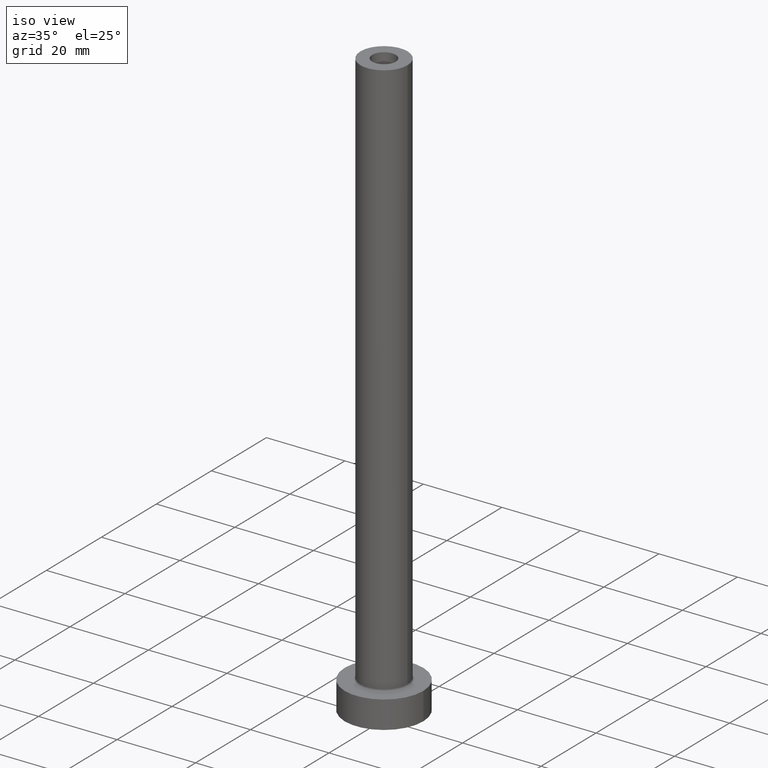
[diagram: clean part render]
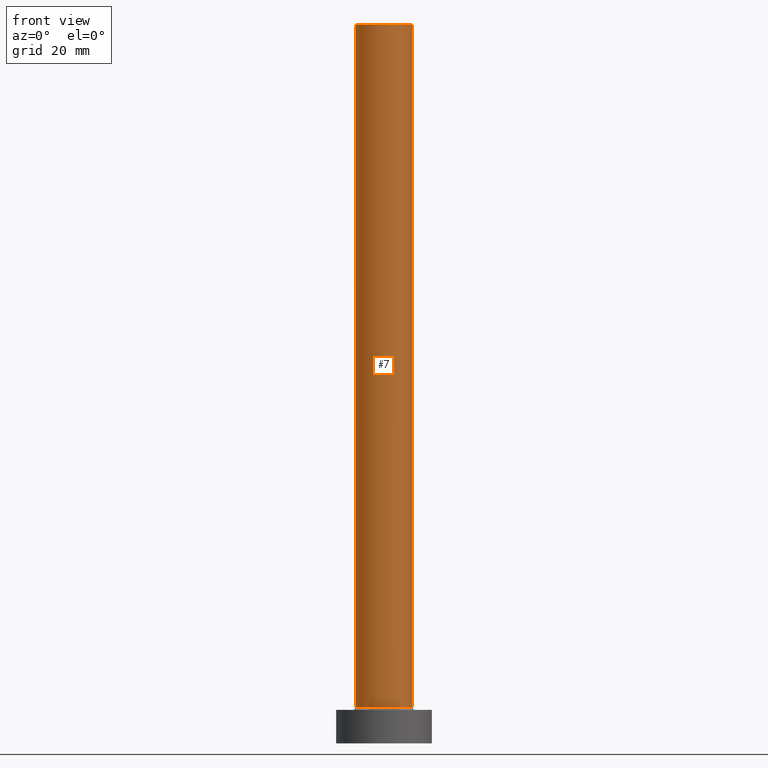
[diagram: tour spotlight — one face highlighted and labeled with its STEP entity id]
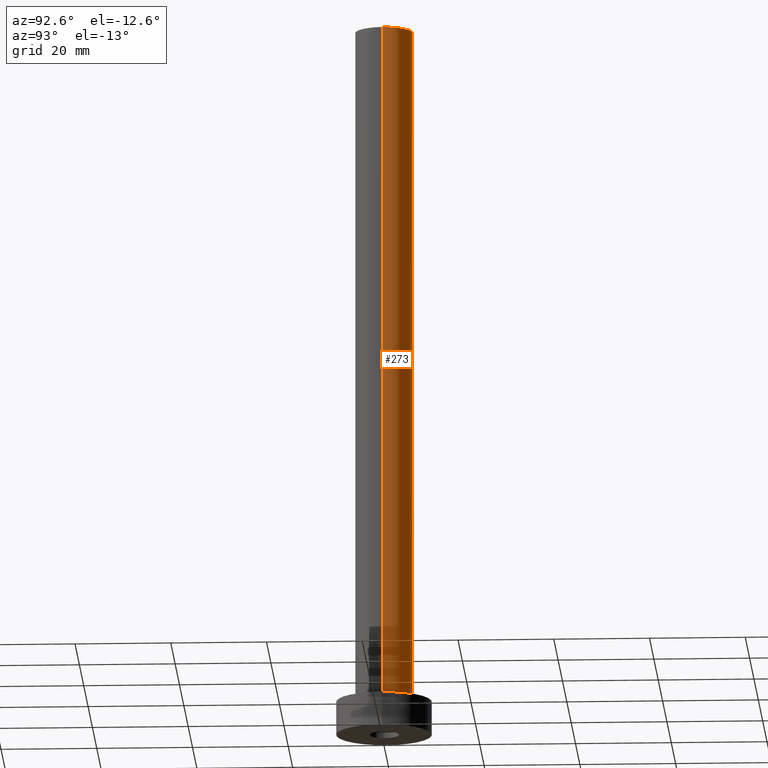
[diagram: tour spotlight — one face highlighted and labeled with its STEP entity id]
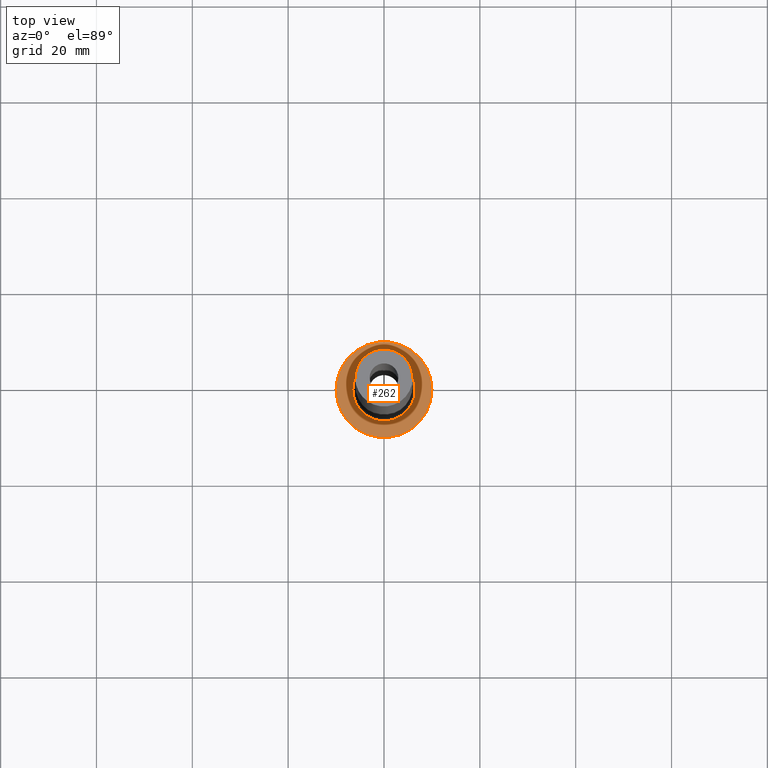
[diagram: tour spotlight — one face highlighted and labeled with its STEP entity id]
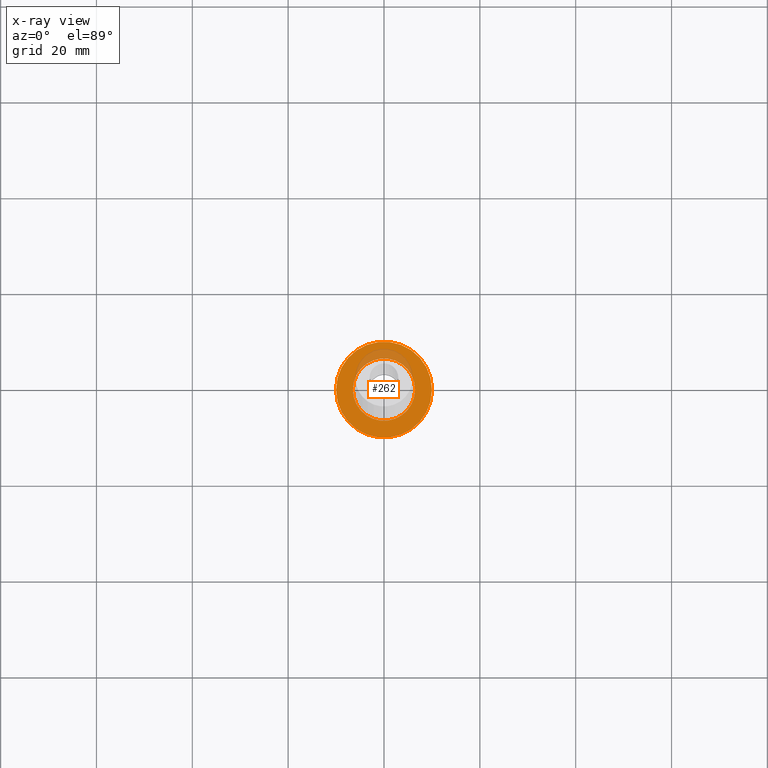
[diagram: x-ray of the same camera — body ghosted, this tour face saturated]
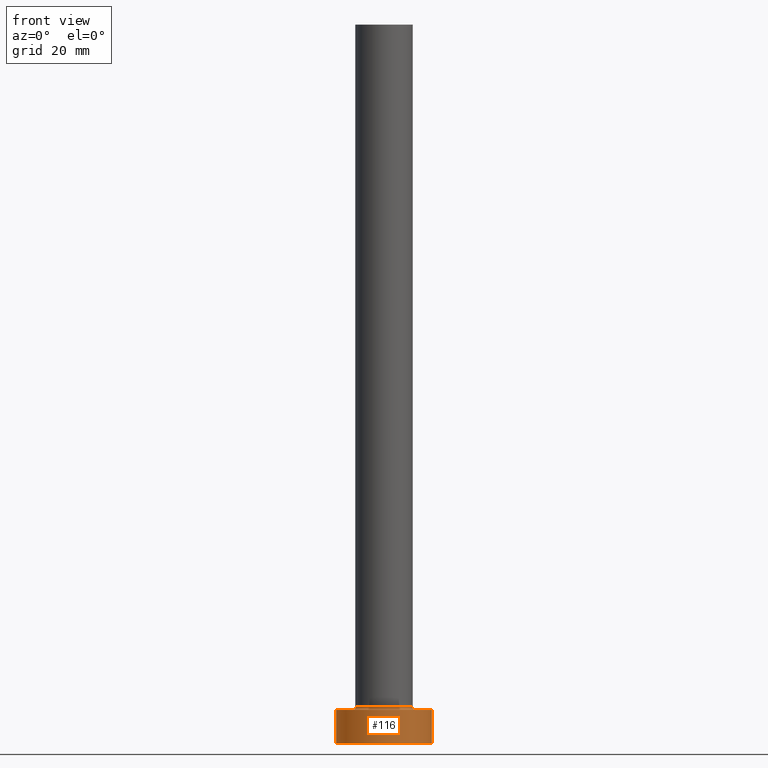
[diagram: tour spotlight — one face highlighted and labeled with its STEP entity id]
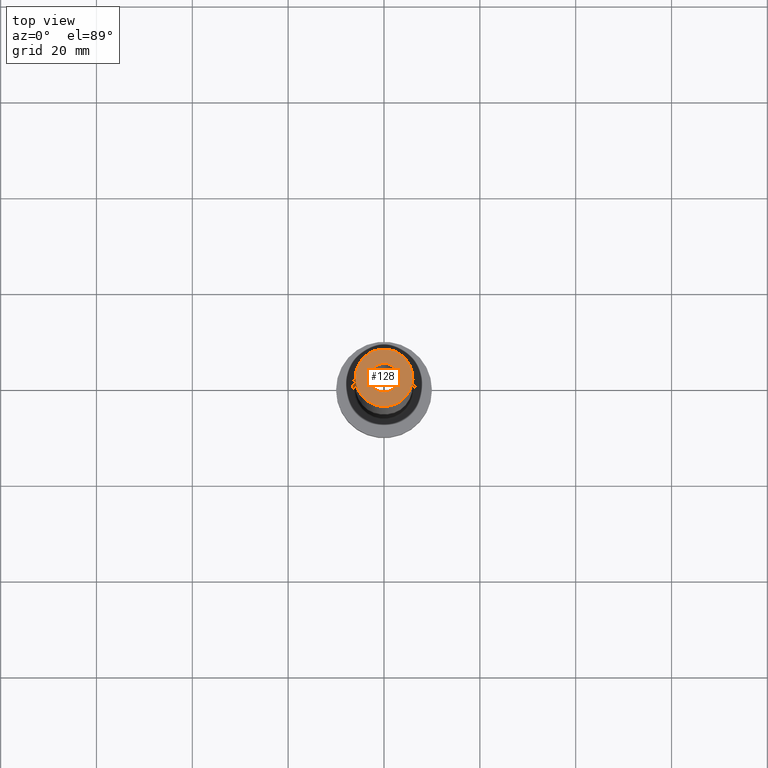
[diagram: tour spotlight — one face highlighted and labeled with its STEP entity id]
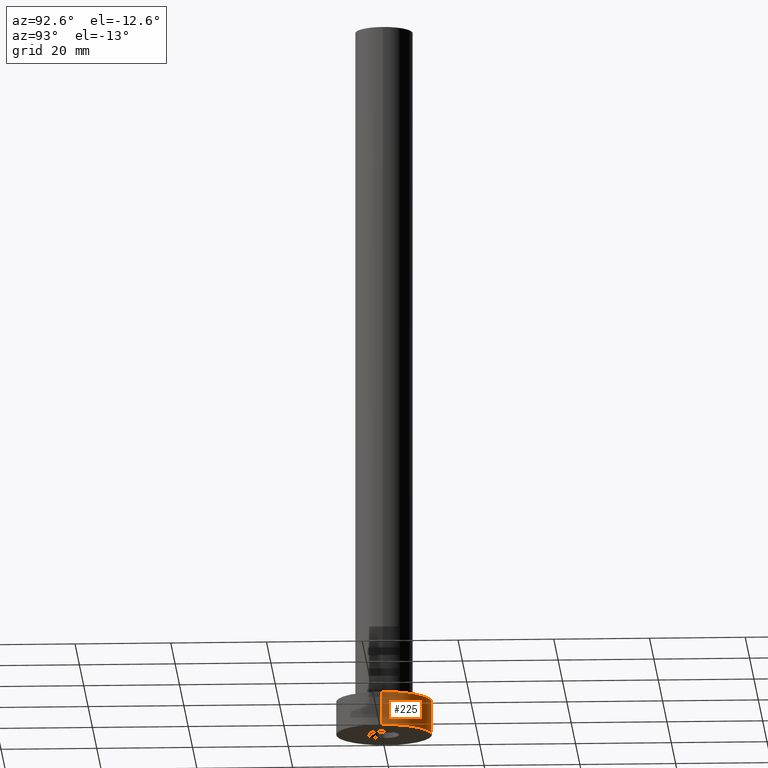
[diagram: tour spotlight — one face highlighted and labeled with its STEP entity id]
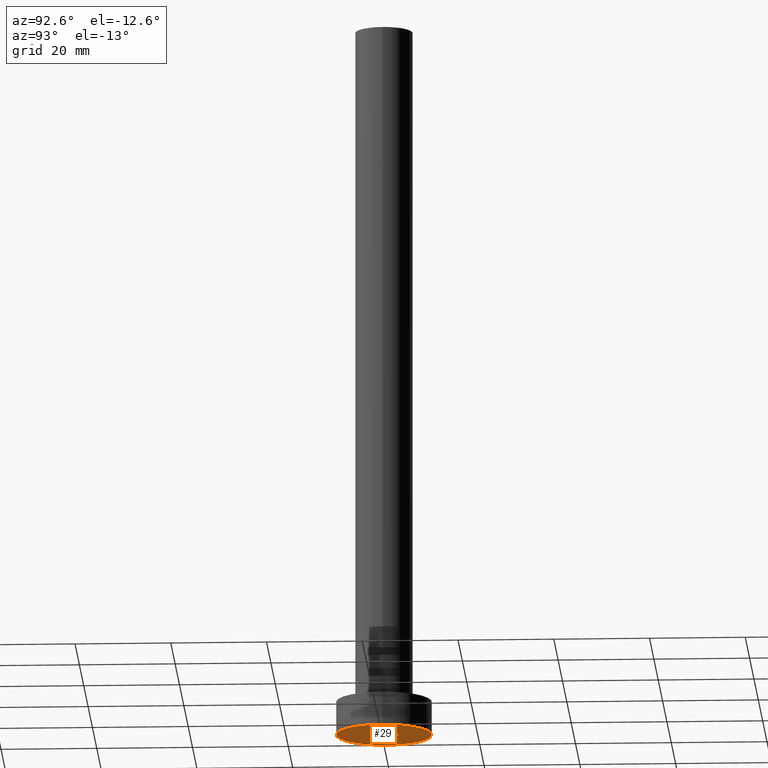
[diagram: tour spotlight — one face highlighted and labeled with its STEP entity id]
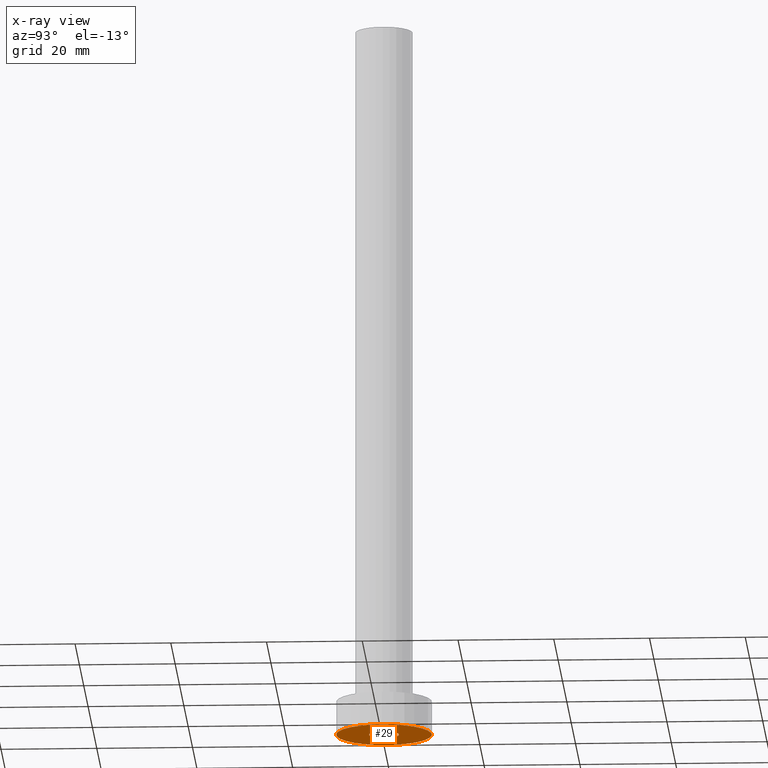
[diagram: x-ray of the same camera — body ghosted, this tour face saturated]
A machine part: a face-by-face anatomy tour. The part has 14 B-rep faces; the first image is the clean iso view, then the 7 largest visible faces are spotlighted one at a time (largest first), each with its STEP entity span.

Face 1 — front view, entity #7. In plain terms, the highlighted cylindrical surface (edge-blend (fillet) strip) has radius 6 mm, axis along (-0, -0, -1).
Definition (entity closure, byte-faithful):
#4 = AXIS2_PLACEMENT_3D ( 'NONE', #210, #75, #453 ) ;
#7 = ADVANCED_FACE ( 'NONE', ( #183 ), #149, .T. ) ;
#10 = EDGE_CURVE ( 'NONE', #397, #441, #392, .T. ) ;
#18 = EDGE_CURVE ( 'NONE', #21, #195, #239, .T. ) ;
#21 = VERTEX_POINT ( 'NONE', #424 ) ;
#57 = DIRECTION ( 'NONE',  ( -0.000000000000000000, -0.000000000000000000, -1.000000000000000000 ) ) ;
#67 = AXIS2_PLACEMENT_3D ( 'NONE', #142, #181, #151 ) ;
#75 = DIRECTION ( 'NONE',  ( -0.000000000000000000, -0.000000000000000000, -1.000000000000000000 ) ) ;
#100 = DIRECTION ( 'NONE',  ( -0.000000000000000000, -0.000000000000000000, -1.000000000000000000 ) ) ;
#141 = EDGE_CURVE ( 'NONE', #441, #195, #235, .T. ) ;
#142 = CARTESIAN_POINT ( 'NONE',  ( 0.000000000000000000, 0.000000000000000000, 150.0000000000000000 ) ) ;
#149 = CYLINDRICAL_SURFACE ( 'NONE', #4, 6.000000000000000888 ) ;
#151 = DIRECTION ( 'NONE',  ( 1.000000000000000000, 0.000000000000000000, 0.000000000000000000 ) ) ;
#154 = ORIENTED_EDGE ( 'NONE', *, *, #18, .T. ) ;
#159 = CARTESIAN_POINT ( 'NONE',  ( -6.000000000000000888, 0.000000000000000000, 150.0000000000000000 ) ) ;
#170 = CARTESIAN_POINT ( 'NONE',  ( 6.000000000000000888, 7.347880794884120722E-16, 150.0000000000000000 ) ) ;
#174 = ORIENTED_EDGE ( 'NONE', *, *, #10, .F. ) ;
#181 = DIRECTION ( 'NONE',  ( 0.000000000000000000, 0.000000000000000000, 1.000000000000000000 ) ) ;
#183 = FACE_OUTER_BOUND ( 'NONE', #405, .T. ) ;
#195 = VERTEX_POINT ( 'NONE', #272 ) ;
#204 = ORIENTED_EDGE ( 'NONE', *, *, #141, .F. ) ;
#208 = VECTOR ( 'NONE', #100, 1000.000000000000000 ) ;
#210 = CARTESIAN_POINT ( 'NONE',  ( 0.000000000000000000, 0.000000000000000000, 150.0000000000000000 ) ) ;
#215 = DIRECTION ( 'NONE',  ( 1.000000000000000000, 0.000000000000000000, 0.000000000000000000 ) ) ;
#235 = LINE ( 'NONE', #170, #415 ) ;
#239 = CIRCLE ( 'NONE', #384, 6.000000000000000888 ) ;
#259 = EDGE_CURVE ( 'NONE', #397, #21, #419, .T. ) ;
#270 = ORIENTED_EDGE ( 'NONE', *, *, #259, .T. ) ;
#272 = CARTESIAN_POINT ( 'NONE',  ( 6.000000000000000888, 7.347880794884120722E-16, 7.500000000000007105 ) ) ;
#312 = CARTESIAN_POINT ( 'NONE',  ( -6.000000000000000888, 0.000000000000000000, 150.0000000000000000 ) ) ;
#354 = DIRECTION ( 'NONE',  ( 0.000000000000000000, 0.000000000000000000, 1.000000000000000000 ) ) ;
#384 = AXIS2_PLACEMENT_3D ( 'NONE', #420, #354, #215 ) ;
#392 = CIRCLE ( 'NONE', #67, 6.000000000000000888 ) ;
#397 = VERTEX_POINT ( 'NONE', #159 ) ;
#405 = EDGE_LOOP ( 'NONE', ( #204, #174, #270, #154 ) ) ;
#414 = CARTESIAN_POINT ( 'NONE',  ( 6.000000000000000888, 7.347880794884120722E-16, 150.0000000000000000 ) ) ;
#415 = VECTOR ( 'NONE', #57, 1000.000000000000000 ) ;
#419 = LINE ( 'NONE', #312, #208 ) ;
#420 = CARTESIAN_POINT ( 'NONE',  ( 0.000000000000000000, 0.000000000000000000, 7.500000000000007105 ) ) ;
#424 = CARTESIAN_POINT ( 'NONE',  ( -6.000000000000000888, 0.000000000000000000, 7.500000000000007105 ) ) ;
#441 = VERTEX_POINT ( 'NONE', #414 ) ;
#453 = DIRECTION ( 'NONE',  ( -1.000000000000000000, 0.000000000000000000, 0.000000000000000000 ) ) ;

Face 2 — auxiliary view, entity #273. In plain terms, the highlighted cylindrical surface (edge-blend (fillet) strip) has radius 6 mm, axis along (-0, -0, -1).
Definition (entity closure, byte-faithful):
#11 = CIRCLE ( 'NONE', #275, 6.000000000000000888 ) ;
#21 = VERTEX_POINT ( 'NONE', #424 ) ;
#32 = DIRECTION ( 'NONE',  ( -0.000000000000000000, -0.000000000000000000, -1.000000000000000000 ) ) ;
#57 = DIRECTION ( 'NONE',  ( -0.000000000000000000, -0.000000000000000000, -1.000000000000000000 ) ) ;
#74 = DIRECTION ( 'NONE',  ( -1.000000000000000000, 0.000000000000000000, 0.000000000000000000 ) ) ;
#84 = DIRECTION ( 'NONE',  ( 0.000000000000000000, 0.000000000000000000, 1.000000000000000000 ) ) ;
#100 = DIRECTION ( 'NONE',  ( -0.000000000000000000, -0.000000000000000000, -1.000000000000000000 ) ) ;
#105 = AXIS2_PLACEMENT_3D ( 'NONE', #388, #32, #74 ) ;
#117 = EDGE_CURVE ( 'NONE', #195, #21, #450, .T. ) ;
#123 = ORIENTED_EDGE ( 'NONE', *, *, #259, .F. ) ;
#141 = EDGE_CURVE ( 'NONE', #441, #195, #235, .T. ) ;
#143 = DIRECTION ( 'NONE',  ( 1.000000000000000000, 0.000000000000000000, 0.000000000000000000 ) ) ;
#159 = CARTESIAN_POINT ( 'NONE',  ( -6.000000000000000888, 0.000000000000000000, 150.0000000000000000 ) ) ;
#170 = CARTESIAN_POINT ( 'NONE',  ( 6.000000000000000888, 7.347880794884120722E-16, 150.0000000000000000 ) ) ;
#182 = EDGE_CURVE ( 'NONE', #441, #397, #11, .T. ) ;
#195 = VERTEX_POINT ( 'NONE', #272 ) ;
#208 = VECTOR ( 'NONE', #100, 1000.000000000000000 ) ;
#234 = ORIENTED_EDGE ( 'NONE', *, *, #182, .F. ) ;
#235 = LINE ( 'NONE', #170, #415 ) ;
#259 = EDGE_CURVE ( 'NONE', #397, #21, #419, .T. ) ;
#272 = CARTESIAN_POINT ( 'NONE',  ( 6.000000000000000888, 7.347880794884120722E-16, 7.500000000000007105 ) ) ;
#273 = ADVANCED_FACE ( 'NONE', ( #428 ), #394, .T. ) ;
#275 = AXIS2_PLACEMENT_3D ( 'NONE', #310, #458, #143 ) ;
#295 = ORIENTED_EDGE ( 'NONE', *, *, #141, .T. ) ;
#304 = AXIS2_PLACEMENT_3D ( 'NONE', #433, #84, #337 ) ;
#310 = CARTESIAN_POINT ( 'NONE',  ( 0.000000000000000000, 0.000000000000000000, 150.0000000000000000 ) ) ;
#312 = CARTESIAN_POINT ( 'NONE',  ( -6.000000000000000888, 0.000000000000000000, 150.0000000000000000 ) ) ;
#337 = DIRECTION ( 'NONE',  ( 1.000000000000000000, 0.000000000000000000, 0.000000000000000000 ) ) ;
#355 = ORIENTED_EDGE ( 'NONE', *, *, #117, .T. ) ;
#388 = CARTESIAN_POINT ( 'NONE',  ( 0.000000000000000000, 0.000000000000000000, 150.0000000000000000 ) ) ;
#394 = CYLINDRICAL_SURFACE ( 'NONE', #105, 6.000000000000000888 ) ;
#397 = VERTEX_POINT ( 'NONE', #159 ) ;
#414 = CARTESIAN_POINT ( 'NONE',  ( 6.000000000000000888, 7.347880794884120722E-16, 150.0000000000000000 ) ) ;
#415 = VECTOR ( 'NONE', #57, 1000.000000000000000 ) ;
#419 = LINE ( 'NONE', #312, #208 ) ;
#424 = CARTESIAN_POINT ( 'NONE',  ( -6.000000000000000888, 0.000000000000000000, 7.500000000000007105 ) ) ;
#428 = FACE_OUTER_BOUND ( 'NONE', #440, .T. ) ;
#433 = CARTESIAN_POINT ( 'NONE',  ( 0.000000000000000000, 0.000000000000000000, 7.500000000000007105 ) ) ;
#440 = EDGE_LOOP ( 'NONE', ( #234, #295, #355, #123 ) ) ;
#441 = VERTEX_POINT ( 'NONE', #414 ) ;
#450 = CIRCLE ( 'NONE', #304, 6.000000000000000888 ) ;
#458 = DIRECTION ( 'NONE',  ( 0.000000000000000000, 0.000000000000000000, 1.000000000000000000 ) ) ;

Face 3 — top view, entity #262. An x-ray twin of the same camera follows (body ghosted, this face saturated) — the face is partly hidden behind the body. In plain terms, the highlighted planar face has unit normal (0, 0, 1).
Definition (entity closure, byte-faithful):
#1 = ORIENTED_EDGE ( 'NONE', *, *, #417, .T. ) ;
#2 = EDGE_CURVE ( 'NONE', #17, #24, #199, .T. ) ;
#17 = VERTEX_POINT ( 'NONE', #294 ) ;
#22 = AXIS2_PLACEMENT_3D ( 'NONE', #391, #291, #212 ) ;
#24 = VERTEX_POINT ( 'NONE', #247 ) ;
#40 = FACE_OUTER_BOUND ( 'NONE', #186, .T. ) ;
#44 = CIRCLE ( 'NONE', #232, 6.500000000000000888 ) ;
#58 = VERTEX_POINT ( 'NONE', #115 ) ;
#85 = VERTEX_POINT ( 'NONE', #400 ) ;
#91 = DIRECTION ( 'NONE',  ( 1.000000000000000000, 0.000000000000000000, 0.000000000000000000 ) ) ;
#95 = CARTESIAN_POINT ( 'NONE',  ( 0.000000000000000000, 0.000000000000000000, 7.000000000000000000 ) ) ;
#109 = CIRCLE ( 'NONE', #133, 10.00000000000000000 ) ;
#113 = CARTESIAN_POINT ( 'NONE',  ( 0.000000000000000000, 0.000000000000000000, 7.000000000000000000 ) ) ;
#114 = CARTESIAN_POINT ( 'NONE',  ( 0.000000000000000000, 0.000000000000000000, 7.000000000000000000 ) ) ;
#115 = CARTESIAN_POINT ( 'NONE',  ( -6.500000000000000888, 7.960204194457796463E-16, 7.000000000000002665 ) ) ;
#133 = AXIS2_PLACEMENT_3D ( 'NONE', #113, #318, #382 ) ;
#166 = ORIENTED_EDGE ( 'NONE', *, *, #2, .T. ) ;
#186 = EDGE_LOOP ( 'NONE', ( #316, #166 ) ) ;
#199 = CIRCLE ( 'NONE', #22, 10.00000000000000000 ) ;
#206 = DIRECTION ( 'NONE',  ( 1.000000000000000000, 0.000000000000000000, 0.000000000000000000 ) ) ;
#212 = DIRECTION ( 'NONE',  ( 1.000000000000000000, 0.000000000000000000, 0.000000000000000000 ) ) ;
#216 = PLANE ( 'NONE',  #313 ) ;
#232 = AXIS2_PLACEMENT_3D ( 'NONE', #95, #233, #206 ) ;
#233 = DIRECTION ( 'NONE',  ( -0.000000000000000000, -0.000000000000000000, -1.000000000000000000 ) ) ;
#246 = DIRECTION ( 'NONE',  ( 1.000000000000000000, 0.000000000000000000, -0.000000000000000000 ) ) ;
#247 = CARTESIAN_POINT ( 'NONE',  ( -10.00000000000000000, 0.000000000000000000, 7.000000000000000000 ) ) ;
#249 = FACE_BOUND ( 'NONE', #266, .T. ) ;
#254 = EDGE_CURVE ( 'NONE', #85, #58, #44, .T. ) ;
#262 = ADVANCED_FACE ( 'NONE', ( #249, #40 ), #216, .T. ) ;
#266 = EDGE_LOOP ( 'NONE', ( #367, #1 ) ) ;
#281 = AXIS2_PLACEMENT_3D ( 'NONE', #381, #406, #91 ) ;
#282 = EDGE_CURVE ( 'NONE', #24, #17, #109, .T. ) ;
#291 = DIRECTION ( 'NONE',  ( 0.000000000000000000, 0.000000000000000000, 1.000000000000000000 ) ) ;
#294 = CARTESIAN_POINT ( 'NONE',  ( 10.00000000000000000, 1.224646799147353256E-15, 7.000000000000000000 ) ) ;
#313 = AXIS2_PLACEMENT_3D ( 'NONE', #114, #357, #246 ) ;
#316 = ORIENTED_EDGE ( 'NONE', *, *, #282, .T. ) ;
#318 = DIRECTION ( 'NONE',  ( 0.000000000000000000, 0.000000000000000000, 1.000000000000000000 ) ) ;
#357 = DIRECTION ( 'NONE',  ( 0.000000000000000000, 0.000000000000000000, 1.000000000000000000 ) ) ;
#367 = ORIENTED_EDGE ( 'NONE', *, *, #254, .T. ) ;
#381 = CARTESIAN_POINT ( 'NONE',  ( 0.000000000000000000, 0.000000000000000000, 7.000000000000000000 ) ) ;
#382 = DIRECTION ( 'NONE',  ( 1.000000000000000000, 0.000000000000000000, 0.000000000000000000 ) ) ;
#391 = CARTESIAN_POINT ( 'NONE',  ( 0.000000000000000000, 0.000000000000000000, 7.000000000000000000 ) ) ;
#400 = CARTESIAN_POINT ( 'NONE',  ( 6.500000000000000888, 0.000000000000000000, 7.000000000000002665 ) ) ;
#406 = DIRECTION ( 'NONE',  ( -0.000000000000000000, -0.000000000000000000, -1.000000000000000000 ) ) ;
#417 = EDGE_CURVE ( 'NONE', #58, #85, #431, .T. ) ;
#431 = CIRCLE ( 'NONE', #281, 6.500000000000000888 ) ;

Face 4 — front view, entity #116. In plain terms, the highlighted cylindrical surface (partial cylindrical patch) has radius 10 mm, axis along (-0, -0, -1).
Definition (entity closure, byte-faithful):
#17 = VERTEX_POINT ( 'NONE', #294 ) ;
#24 = VERTEX_POINT ( 'NONE', #247 ) ;
#51 = ORIENTED_EDGE ( 'NONE', *, *, #278, .T. ) ;
#62 = VECTOR ( 'NONE', #243, 1000.000000000000000 ) ;
#81 = FACE_OUTER_BOUND ( 'NONE', #197, .T. ) ;
#89 = EDGE_CURVE ( 'NONE', #17, #198, #156, .T. ) ;
#109 = CIRCLE ( 'NONE', #133, 10.00000000000000000 ) ;
#113 = CARTESIAN_POINT ( 'NONE',  ( 0.000000000000000000, 0.000000000000000000, 7.000000000000000000 ) ) ;
#116 = ADVANCED_FACE ( 'NONE', ( #81 ), #435, .T. ) ;
#124 = DIRECTION ( 'NONE',  ( -0.000000000000000000, -0.000000000000000000, -1.000000000000000000 ) ) ;
#126 = AXIS2_PLACEMENT_3D ( 'NONE', #358, #124, #264 ) ;
#133 = AXIS2_PLACEMENT_3D ( 'NONE', #113, #318, #382 ) ;
#145 = CARTESIAN_POINT ( 'NONE',  ( -10.00000000000000000, 0.000000000000000000, 7.000000000000000000 ) ) ;
#147 = CARTESIAN_POINT ( 'NONE',  ( 10.00000000000000000, 1.224646799147353256E-15, 0.000000000000000000 ) ) ;
#156 = LINE ( 'NONE', #434, #205 ) ;
#161 = ORIENTED_EDGE ( 'NONE', *, *, #89, .F. ) ;
#163 = AXIS2_PLACEMENT_3D ( 'NONE', #319, #284, #292 ) ;
#172 = ORIENTED_EDGE ( 'NONE', *, *, #282, .F. ) ;
#197 = EDGE_LOOP ( 'NONE', ( #161, #172, #223, #51 ) ) ;
#198 = VERTEX_POINT ( 'NONE', #147 ) ;
#205 = VECTOR ( 'NONE', #269, 1000.000000000000000 ) ;
#223 = ORIENTED_EDGE ( 'NONE', *, *, #296, .T. ) ;
#243 = DIRECTION ( 'NONE',  ( -0.000000000000000000, -0.000000000000000000, -1.000000000000000000 ) ) ;
#247 = CARTESIAN_POINT ( 'NONE',  ( -10.00000000000000000, 0.000000000000000000, 7.000000000000000000 ) ) ;
#264 = DIRECTION ( 'NONE',  ( -1.000000000000000000, 0.000000000000000000, 0.000000000000000000 ) ) ;
#269 = DIRECTION ( 'NONE',  ( -0.000000000000000000, -0.000000000000000000, -1.000000000000000000 ) ) ;
#278 = EDGE_CURVE ( 'NONE', #409, #198, #459, .T. ) ;
#282 = EDGE_CURVE ( 'NONE', #24, #17, #109, .T. ) ;
#284 = DIRECTION ( 'NONE',  ( 0.000000000000000000, 0.000000000000000000, 1.000000000000000000 ) ) ;
#292 = DIRECTION ( 'NONE',  ( 1.000000000000000000, 0.000000000000000000, 0.000000000000000000 ) ) ;
#294 = CARTESIAN_POINT ( 'NONE',  ( 10.00000000000000000, 1.224646799147353256E-15, 7.000000000000000000 ) ) ;
#296 = EDGE_CURVE ( 'NONE', #24, #409, #451, .T. ) ;
#318 = DIRECTION ( 'NONE',  ( 0.000000000000000000, 0.000000000000000000, 1.000000000000000000 ) ) ;
#319 = CARTESIAN_POINT ( 'NONE',  ( 0.000000000000000000, 0.000000000000000000, 0.000000000000000000 ) ) ;
#336 = CARTESIAN_POINT ( 'NONE',  ( -10.00000000000000000, 0.000000000000000000, 0.000000000000000000 ) ) ;
#358 = CARTESIAN_POINT ( 'NONE',  ( 0.000000000000000000, 0.000000000000000000, 7.000000000000000000 ) ) ;
#382 = DIRECTION ( 'NONE',  ( 1.000000000000000000, 0.000000000000000000, 0.000000000000000000 ) ) ;
#409 = VERTEX_POINT ( 'NONE', #336 ) ;
#434 = CARTESIAN_POINT ( 'NONE',  ( 10.00000000000000000, 1.224646799147353256E-15, 7.000000000000000000 ) ) ;
#435 = CYLINDRICAL_SURFACE ( 'NONE', #126, 10.00000000000000000 ) ;
#451 = LINE ( 'NONE', #145, #62 ) ;
#459 = CIRCLE ( 'NONE', #163, 10.00000000000000000 ) ;

Face 5 — top view, entity #128. In plain terms, the highlighted planar face has unit normal (0, 0, 1).
Definition (entity closure, byte-faithful):
#3 = CARTESIAN_POINT ( 'NONE',  ( 0.000000000000000000, 0.000000000000000000, 150.0000000000000000 ) ) ;
#9 = FACE_OUTER_BOUND ( 'NONE', #53, .T. ) ;
#10 = EDGE_CURVE ( 'NONE', #397, #441, #392, .T. ) ;
#11 = CIRCLE ( 'NONE', #275, 6.000000000000000888 ) ;
#16 = DIRECTION ( 'NONE',  ( 0.000000000000000000, 0.000000000000000000, 1.000000000000000000 ) ) ;
#23 = CIRCLE ( 'NONE', #93, 3.000000000000000444 ) ;
#28 = DIRECTION ( 'NONE',  ( 1.000000000000000000, 0.000000000000000000, -0.000000000000000000 ) ) ;
#48 = ORIENTED_EDGE ( 'NONE', *, *, #10, .T. ) ;
#52 = CARTESIAN_POINT ( 'NONE',  ( 0.000000000000000000, 0.000000000000000000, 150.0000000000000000 ) ) ;
#53 = EDGE_LOOP ( 'NONE', ( #48, #401 ) ) ;
#67 = AXIS2_PLACEMENT_3D ( 'NONE', #142, #181, #151 ) ;
#69 = CARTESIAN_POINT ( 'NONE',  ( -3.000000000000000444, 0.000000000000000000, 150.0000000000000000 ) ) ;
#93 = AXIS2_PLACEMENT_3D ( 'NONE', #52, #196, #260 ) ;
#96 = EDGE_CURVE ( 'NONE', #176, #307, #23, .T. ) ;
#112 = EDGE_LOOP ( 'NONE', ( #314, #365 ) ) ;
#121 = FACE_BOUND ( 'NONE', #112, .T. ) ;
#128 = ADVANCED_FACE ( 'NONE', ( #121, #9 ), #342, .T. ) ;
#142 = CARTESIAN_POINT ( 'NONE',  ( 0.000000000000000000, 0.000000000000000000, 150.0000000000000000 ) ) ;
#143 = DIRECTION ( 'NONE',  ( 1.000000000000000000, 0.000000000000000000, 0.000000000000000000 ) ) ;
#151 = DIRECTION ( 'NONE',  ( 1.000000000000000000, 0.000000000000000000, 0.000000000000000000 ) ) ;
#153 = DIRECTION ( 'NONE',  ( 0.000000000000000000, 0.000000000000000000, 1.000000000000000000 ) ) ;
#159 = CARTESIAN_POINT ( 'NONE',  ( -6.000000000000000888, 0.000000000000000000, 150.0000000000000000 ) ) ;
#175 = CIRCLE ( 'NONE', #430, 3.000000000000000444 ) ;
#176 = VERTEX_POINT ( 'NONE', #375 ) ;
#181 = DIRECTION ( 'NONE',  ( 0.000000000000000000, 0.000000000000000000, 1.000000000000000000 ) ) ;
#182 = EDGE_CURVE ( 'NONE', #441, #397, #11, .T. ) ;
#196 = DIRECTION ( 'NONE',  ( 0.000000000000000000, 0.000000000000000000, 1.000000000000000000 ) ) ;
#252 = DIRECTION ( 'NONE',  ( 1.000000000000000000, 0.000000000000000000, 0.000000000000000000 ) ) ;
#260 = DIRECTION ( 'NONE',  ( 1.000000000000000000, 0.000000000000000000, 0.000000000000000000 ) ) ;
#275 = AXIS2_PLACEMENT_3D ( 'NONE', #310, #458, #143 ) ;
#298 = AXIS2_PLACEMENT_3D ( 'NONE', #370, #16, #28 ) ;
#307 = VERTEX_POINT ( 'NONE', #69 ) ;
#310 = CARTESIAN_POINT ( 'NONE',  ( 0.000000000000000000, 0.000000000000000000, 150.0000000000000000 ) ) ;
#314 = ORIENTED_EDGE ( 'NONE', *, *, #369, .F. ) ;
#342 = PLANE ( 'NONE',  #298 ) ;
#365 = ORIENTED_EDGE ( 'NONE', *, *, #96, .F. ) ;
#369 = EDGE_CURVE ( 'NONE', #307, #176, #175, .T. ) ;
#370 = CARTESIAN_POINT ( 'NONE',  ( 0.000000000000000000, 0.000000000000000000, 150.0000000000000000 ) ) ;
#375 = CARTESIAN_POINT ( 'NONE',  ( 3.000000000000000444, 3.673940397442059868E-16, 150.0000000000000000 ) ) ;
#392 = CIRCLE ( 'NONE', #67, 6.000000000000000888 ) ;
#397 = VERTEX_POINT ( 'NONE', #159 ) ;
#401 = ORIENTED_EDGE ( 'NONE', *, *, #182, .T. ) ;
#414 = CARTESIAN_POINT ( 'NONE',  ( 6.000000000000000888, 7.347880794884120722E-16, 150.0000000000000000 ) ) ;
#430 = AXIS2_PLACEMENT_3D ( 'NONE', #3, #153, #252 ) ;
#441 = VERTEX_POINT ( 'NONE', #414 ) ;
#458 = DIRECTION ( 'NONE',  ( 0.000000000000000000, 0.000000000000000000, 1.000000000000000000 ) ) ;

Face 6 — auxiliary view, entity #225. In plain terms, the highlighted cylindrical surface (partial cylindrical patch) has radius 10 mm, axis along (-0, -0, -1).
Definition (entity closure, byte-faithful):
#2 = EDGE_CURVE ( 'NONE', #17, #24, #199, .T. ) ;
#8 = ORIENTED_EDGE ( 'NONE', *, *, #178, .T. ) ;
#17 = VERTEX_POINT ( 'NONE', #294 ) ;
#22 = AXIS2_PLACEMENT_3D ( 'NONE', #391, #291, #212 ) ;
#24 = VERTEX_POINT ( 'NONE', #247 ) ;
#33 = ORIENTED_EDGE ( 'NONE', *, *, #2, .F. ) ;
#54 = EDGE_LOOP ( 'NONE', ( #33, #129, #8, #306 ) ) ;
#56 = AXIS2_PLACEMENT_3D ( 'NONE', #347, #60, #177 ) ;
#60 = DIRECTION ( 'NONE',  ( 0.000000000000000000, 0.000000000000000000, 1.000000000000000000 ) ) ;
#62 = VECTOR ( 'NONE', #243, 1000.000000000000000 ) ;
#89 = EDGE_CURVE ( 'NONE', #17, #198, #156, .T. ) ;
#129 = ORIENTED_EDGE ( 'NONE', *, *, #89, .T. ) ;
#145 = CARTESIAN_POINT ( 'NONE',  ( -10.00000000000000000, 0.000000000000000000, 7.000000000000000000 ) ) ;
#147 = CARTESIAN_POINT ( 'NONE',  ( 10.00000000000000000, 1.224646799147353256E-15, 0.000000000000000000 ) ) ;
#156 = LINE ( 'NONE', #434, #205 ) ;
#177 = DIRECTION ( 'NONE',  ( 1.000000000000000000, 0.000000000000000000, 0.000000000000000000 ) ) ;
#178 = EDGE_CURVE ( 'NONE', #198, #409, #348, .T. ) ;
#198 = VERTEX_POINT ( 'NONE', #147 ) ;
#199 = CIRCLE ( 'NONE', #22, 10.00000000000000000 ) ;
#205 = VECTOR ( 'NONE', #269, 1000.000000000000000 ) ;
#212 = DIRECTION ( 'NONE',  ( 1.000000000000000000, 0.000000000000000000, 0.000000000000000000 ) ) ;
#225 = ADVANCED_FACE ( 'NONE', ( #423 ), #410, .T. ) ;
#243 = DIRECTION ( 'NONE',  ( -0.000000000000000000, -0.000000000000000000, -1.000000000000000000 ) ) ;
#247 = CARTESIAN_POINT ( 'NONE',  ( -10.00000000000000000, 0.000000000000000000, 7.000000000000000000 ) ) ;
#269 = DIRECTION ( 'NONE',  ( -0.000000000000000000, -0.000000000000000000, -1.000000000000000000 ) ) ;
#291 = DIRECTION ( 'NONE',  ( 0.000000000000000000, 0.000000000000000000, 1.000000000000000000 ) ) ;
#294 = CARTESIAN_POINT ( 'NONE',  ( 10.00000000000000000, 1.224646799147353256E-15, 7.000000000000000000 ) ) ;
#296 = EDGE_CURVE ( 'NONE', #24, #409, #451, .T. ) ;
#306 = ORIENTED_EDGE ( 'NONE', *, *, #296, .F. ) ;
#336 = CARTESIAN_POINT ( 'NONE',  ( -10.00000000000000000, 0.000000000000000000, 0.000000000000000000 ) ) ;
#345 = DIRECTION ( 'NONE',  ( -0.000000000000000000, -0.000000000000000000, -1.000000000000000000 ) ) ;
#347 = CARTESIAN_POINT ( 'NONE',  ( 0.000000000000000000, 0.000000000000000000, 0.000000000000000000 ) ) ;
#348 = CIRCLE ( 'NONE', #56, 10.00000000000000000 ) ;
#391 = CARTESIAN_POINT ( 'NONE',  ( 0.000000000000000000, 0.000000000000000000, 7.000000000000000000 ) ) ;
#407 = AXIS2_PLACEMENT_3D ( 'NONE', #408, #345, #412 ) ;
#408 = CARTESIAN_POINT ( 'NONE',  ( 0.000000000000000000, 0.000000000000000000, 7.000000000000000000 ) ) ;
#409 = VERTEX_POINT ( 'NONE', #336 ) ;
#410 = CYLINDRICAL_SURFACE ( 'NONE', #407, 10.00000000000000000 ) ;
#412 = DIRECTION ( 'NONE',  ( -1.000000000000000000, 0.000000000000000000, 0.000000000000000000 ) ) ;
#423 = FACE_OUTER_BOUND ( 'NONE', #54, .T. ) ;
#434 = CARTESIAN_POINT ( 'NONE',  ( 10.00000000000000000, 1.224646799147353256E-15, 7.000000000000000000 ) ) ;
#451 = LINE ( 'NONE', #145, #62 ) ;

Face 7 — auxiliary view, entity #29. An x-ray twin of the same camera follows (body ghosted, this face saturated) — the face is partly hidden behind the body. In plain terms, the highlighted planar face has unit normal (0, 0, 1).
Definition (entity closure, byte-faithful):
#29 = ADVANCED_FACE ( 'NONE', ( #108, #118 ), #30, .F. ) ;
#30 = PLANE ( 'NONE',  #320 ) ;
#34 = AXIS2_PLACEMENT_3D ( 'NONE', #286, #38, #283 ) ;
#38 = DIRECTION ( 'NONE',  ( -0.000000000000000000, -0.000000000000000000, -1.000000000000000000 ) ) ;
#56 = AXIS2_PLACEMENT_3D ( 'NONE', #347, #60, #177 ) ;
#59 = EDGE_CURVE ( 'NONE', #231, #73, #148, .T. ) ;
#60 = DIRECTION ( 'NONE',  ( 0.000000000000000000, 0.000000000000000000, 1.000000000000000000 ) ) ;
#73 = VERTEX_POINT ( 'NONE', #242 ) ;
#90 = ORIENTED_EDGE ( 'NONE', *, *, #222, .F. ) ;
#108 = FACE_BOUND ( 'NONE', #418, .T. ) ;
#111 = DIRECTION ( 'NONE',  ( 1.000000000000000000, 0.000000000000000000, -0.000000000000000000 ) ) ;
#118 = FACE_OUTER_BOUND ( 'NONE', #363, .T. ) ;
#147 = CARTESIAN_POINT ( 'NONE',  ( 10.00000000000000000, 1.224646799147353256E-15, 0.000000000000000000 ) ) ;
#148 = CIRCLE ( 'NONE', #34, 3.150000000000000355 ) ;
#163 = AXIS2_PLACEMENT_3D ( 'NONE', #319, #284, #292 ) ;
#177 = DIRECTION ( 'NONE',  ( 1.000000000000000000, 0.000000000000000000, 0.000000000000000000 ) ) ;
#178 = EDGE_CURVE ( 'NONE', #198, #409, #348, .T. ) ;
#198 = VERTEX_POINT ( 'NONE', #147 ) ;
#203 = CARTESIAN_POINT ( 'NONE',  ( 0.000000000000000000, 0.000000000000000000, 0.000000000000000000 ) ) ;
#220 = ORIENTED_EDGE ( 'NONE', *, *, #278, .F. ) ;
#222 = EDGE_CURVE ( 'NONE', #73, #231, #333, .T. ) ;
#231 = VERTEX_POINT ( 'NONE', #378 ) ;
#242 = CARTESIAN_POINT ( 'NONE',  ( -3.150000000000000355, 0.000000000000000000, 0.000000000000000000 ) ) ;
#265 = ORIENTED_EDGE ( 'NONE', *, *, #59, .F. ) ;
#276 = DIRECTION ( 'NONE',  ( -0.000000000000000000, -0.000000000000000000, -1.000000000000000000 ) ) ;
#278 = EDGE_CURVE ( 'NONE', #409, #198, #459, .T. ) ;
#283 = DIRECTION ( 'NONE',  ( 1.000000000000000000, 0.000000000000000000, 0.000000000000000000 ) ) ;
#284 = DIRECTION ( 'NONE',  ( 0.000000000000000000, 0.000000000000000000, 1.000000000000000000 ) ) ;
#286 = CARTESIAN_POINT ( 'NONE',  ( 0.000000000000000000, 0.000000000000000000, 0.000000000000000000 ) ) ;
#287 = AXIS2_PLACEMENT_3D ( 'NONE', #203, #276, #289 ) ;
#289 = DIRECTION ( 'NONE',  ( 1.000000000000000000, 0.000000000000000000, 0.000000000000000000 ) ) ;
#292 = DIRECTION ( 'NONE',  ( 1.000000000000000000, 0.000000000000000000, 0.000000000000000000 ) ) ;
#319 = CARTESIAN_POINT ( 'NONE',  ( 0.000000000000000000, 0.000000000000000000, 0.000000000000000000 ) ) ;
#320 = AXIS2_PLACEMENT_3D ( 'NONE', #389, #395, #111 ) ;
#333 = CIRCLE ( 'NONE', #287, 3.150000000000000355 ) ;
#336 = CARTESIAN_POINT ( 'NONE',  ( -10.00000000000000000, 0.000000000000000000, 0.000000000000000000 ) ) ;
#339 = ORIENTED_EDGE ( 'NONE', *, *, #178, .F. ) ;
#347 = CARTESIAN_POINT ( 'NONE',  ( 0.000000000000000000, 0.000000000000000000, 0.000000000000000000 ) ) ;
#348 = CIRCLE ( 'NONE', #56, 10.00000000000000000 ) ;
#363 = EDGE_LOOP ( 'NONE', ( #220, #339 ) ) ;
#378 = CARTESIAN_POINT ( 'NONE',  ( 3.150000000000000355, 3.857637417314162196E-16, 0.000000000000000000 ) ) ;
#389 = CARTESIAN_POINT ( 'NONE',  ( 0.000000000000000000, 0.000000000000000000, 0.000000000000000000 ) ) ;
#395 = DIRECTION ( 'NONE',  ( 0.000000000000000000, 0.000000000000000000, 1.000000000000000000 ) ) ;
#409 = VERTEX_POINT ( 'NONE', #336 ) ;
#418 = EDGE_LOOP ( 'NONE', ( #90, #265 ) ) ;
#459 = CIRCLE ( 'NONE', #163, 10.00000000000000000 ) ;